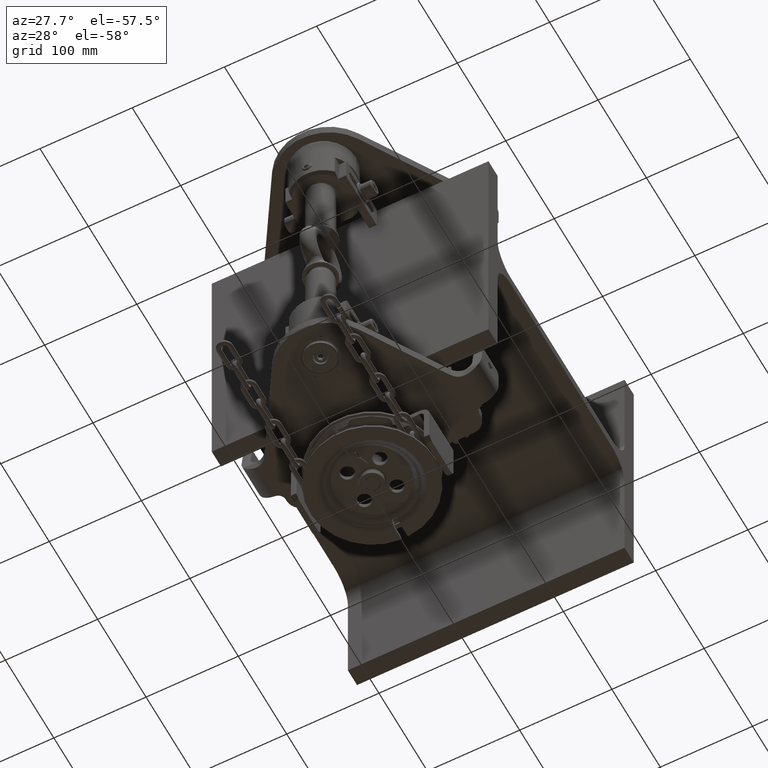
[diagram: clean part render]
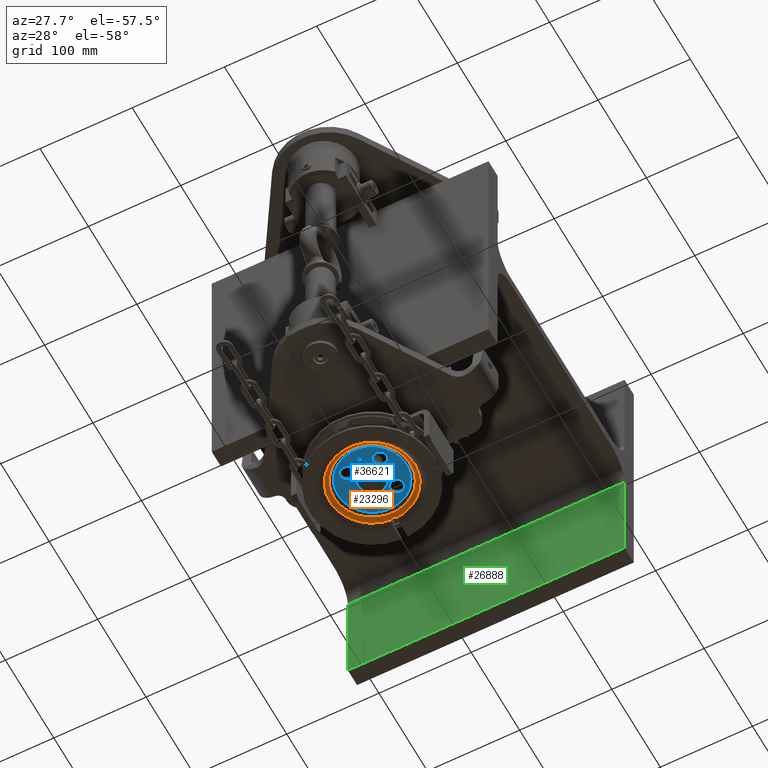
[diagram: same view with three faces highlighted in distinct colors, each labeled with its STEP entity id]
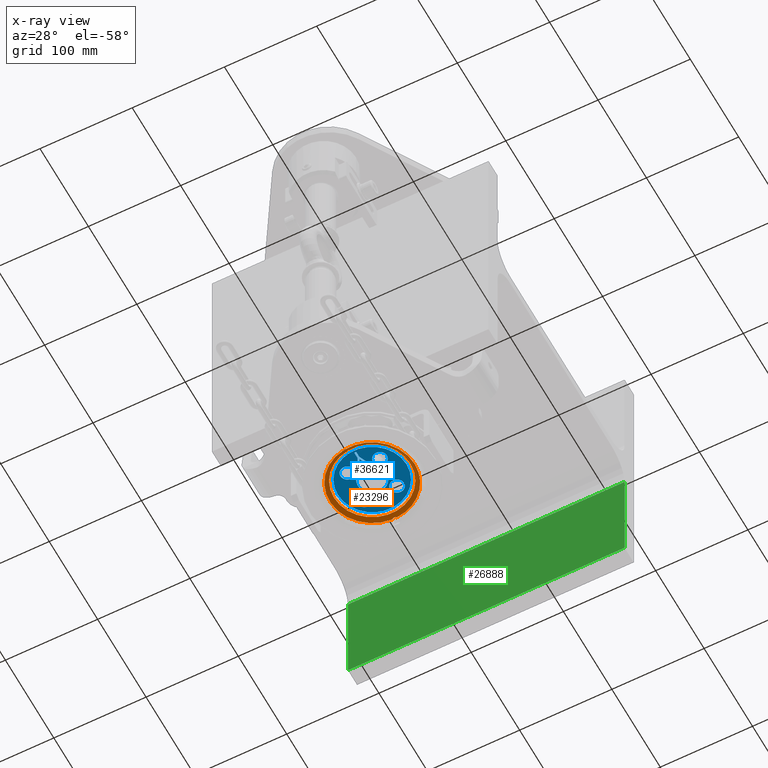
[diagram: x-ray of the same camera — body ghosted, the three highlighted faces saturated]
A machine part, auxiliary view with three faces highlighted in distinct colors.
The next image is the same camera in x-ray (body ghosted, the three faces saturated) — at least one of them is partly hidden behind the body in this view.
Their STEP definitions:

[orange] entity #23296 — the highlighted toroidal blend (fillet) surface has major radius 48.5 mm and minor (blend) radius 8.5 mm.
#99 = AXIS2_PLACEMENT_3D ( 'NONE', #54396, #8509, #29300 ) ;
#3870 = VERTEX_POINT ( 'NONE', #27962 ) ;
#4227 = CARTESIAN_POINT ( 'NONE',  ( -0.9015049907145018500, -59.30965585281169400, -251.2987284569895800 ) ) ;
#4594 = DIRECTION ( 'NONE',  ( -8.598583866909079100E-029, 4.854769171880107100E-015, 1.000000000000000000 ) ) ;
#5669 = EDGE_LOOP ( 'NONE', ( #22270, #6450 ) ) ;
#6450 = ORIENTED_EDGE ( 'NONE', *, *, #35070, .F. ) ;
#7908 = FACE_OUTER_BOUND ( 'NONE', #5669, .T. ) ;
#8219 = CARTESIAN_POINT ( 'NONE',  ( -0.4519893890075326000, -59.39824433313834400, -251.2567023276027700 ) ) ;
#8509 = DIRECTION ( 'NONE',  ( -8.598583866909079100E-029, 4.854769171880107100E-015, 1.000000000000000000 ) ) ;
#8767 = DIRECTION ( 'NONE',  ( 1.000000000000000000, 0.0000000000000000000, 0.0000000000000000000 ) ) ;
#11512 = AXIS2_PLACEMENT_3D ( 'NONE', #50792, #4594, #8767 ) ;
#12237 = CARTESIAN_POINT ( 'NONE',  ( 0.9074859709528075900, -59.30791523393070700, -251.2995403124825800 ) ) ;
#12388 = B_SPLINE_CURVE_WITH_KNOTS ( 'NONE', 3,
 ( #53943, #37833, #41677, #29024, #33222, #37482, #12237, #29376, #12613, #29210, #8219, #4227, #37663, #16486, #42036, #45876, #20929, #20745 ),
 .UNSPECIFIED., .F., .F.,
 ( 4, 2, 2, 2, 2, 2, 2, 2, 4 ),
 ( 9.171273438744803700E-007, 0.0006839626874920374600, 0.001367008247640200900, 0.002050053807788364900, 0.002733099367936528600, 0.003416144928084691900, 0.004099190488232856000, 0.004782236048381019300, 0.005465281608529183400 ),
 .UNSPECIFIED. ) ;
#12613 = CARTESIAN_POINT ( 'NONE',  ( 0.2304750955373564600, -59.41984013718246900, -251.2460445442598000 ) ) ;
#13511 = VERTEX_POINT ( 'NONE', #19656 ) ;
#14629 = EDGE_CURVE ( 'NONE', #13511, #23862, #12388, .T. ) ;
#15647 = DIRECTION ( 'NONE',  ( -8.598583866909079100E-029, 4.854769171880107100E-015, 1.000000000000000000 ) ) ;
#16486 = CARTESIAN_POINT ( 'NONE',  ( -1.536759186382755000, -59.07262552135375700, -251.4045097708354000 ) ) ;
#17106 = FACE_OUTER_BOUND ( 'NONE', #45091, .T. ) ;
#19656 = CARTESIAN_POINT ( 'NONE',  ( 2.448331331080666000, -58.42113448124477100, -251.6434507915105600 ) ) ;
#20745 = CARTESIAN_POINT ( 'NONE',  ( -2.448331331080704200, -58.42113448124477100, -251.6434507915105600 ) ) ;
#20929 = CARTESIAN_POINT ( 'NONE',  ( -2.287226847370896500, -58.57883777868895000, -251.5937808058776900 ) ) ;
#22270 = ORIENTED_EDGE ( 'NONE', *, *, #14629, .F. ) ;
#23296 = ADVANCED_FACE ( 'NONE', ( #7908, #17106 ), #35488, .T. ) ;
#23862 = VERTEX_POINT ( 'NONE', #31596 ) ;
#25150 = ORIENTED_EDGE ( 'NONE', *, *, #29367, .T. ) ;
#27962 = CARTESIAN_POINT ( 'NONE',  ( 41.43242493609501100, -104.4200000000059400, -248.2222222222097800 ) ) ;
#29024 = CARTESIAN_POINT ( 'NONE',  ( 1.741809548091862100, -58.96397086662069100, -251.4500501506236700 ) ) ;
#29207 = CIRCLE ( 'NONE', #39756, 41.43242493609500300 ) ;
#29210 = CARTESIAN_POINT ( 'NONE',  ( -0.2255938912752383200, -59.42015816095722200, -251.2458896693429200 ) ) ;
#29300 = DIRECTION ( 'NONE',  ( 1.000000000000000000, 4.174413987889584400E-043, 8.598583866909079100E-029 ) ) ;
#29367 = EDGE_CURVE ( 'NONE', #3870, #3870, #29207, .T. ) ;
#29376 = CARTESIAN_POINT ( 'NONE',  ( 0.4623877475579067900, -59.39673668699325000, -251.2574309411774000 ) ) ;
#31596 = CARTESIAN_POINT ( 'NONE',  ( -2.448331331080704200, -58.42113448124477100, -251.6434507915105600 ) ) ;
#32956 = DIRECTION ( 'NONE',  ( 1.000000000000000000, 0.0000000000000000000, 0.0000000000000000000 ) ) ;
#33222 = CARTESIAN_POINT ( 'NONE',  ( 1.540971101534421200, -59.07062915890555400, -251.4053618849185900 ) ) ;
#35070 = EDGE_CURVE ( 'NONE', #23862, #13511, #49875, .T. ) ;
#35488 = TOROIDAL_SURFACE ( 'NONE', #99, 48.50000000000026300, 8.500000000000063900 ) ;
#37482 = CARTESIAN_POINT ( 'NONE',  ( 1.123066110408383700, -59.24261621984297900, -251.3300420328047800 ) ) ;
#37663 = CARTESIAN_POINT ( 'NONE',  ( -1.120224046304510300, -59.24351840086755100, -251.3296243822354400 ) ) ;
#37833 = CARTESIAN_POINT ( 'NONE',  ( 2.287287764256186400, -58.57877814786144900, -251.5937995871106500 ) ) ;
#39756 = AXIS2_PLACEMENT_3D ( 'NONE', #53286, #15647, #32956 ) ;
#41677 = CARTESIAN_POINT ( 'NONE',  ( 2.113795968603536100, -58.71848633046027300, -251.5440548781766100 ) ) ;
#42036 = CARTESIAN_POINT ( 'NONE',  ( -1.737905530323594600, -58.96633218853927600, -251.4491138369849400 ) ) ;
#45091 = EDGE_LOOP ( 'NONE', ( #25150 ) ) ;
#45876 = CARTESIAN_POINT ( 'NONE',  ( -2.113058929329494800, -58.71918513079051400, -251.5438189678311300 ) ) ;
#49875 = CIRCLE ( 'NONE', #11512, 46.06397676405962500 ) ;
#50792 = CARTESIAN_POINT ( 'NONE',  ( 7.062578760751415200E-015, -104.4200000000059600, -251.6434507915103000 ) ) ;
#53286 = CARTESIAN_POINT ( 'NONE',  ( 7.062578760751281100E-015, -104.4200000000059400, -248.2222222222097800 ) ) ;
#53943 = CARTESIAN_POINT ( 'NONE',  ( 2.448331331080666000, -58.42113448124477100, -251.6434507915105600 ) ) ;
#54396 = CARTESIAN_POINT ( 'NONE',  ( 7.062578760757020000E-015, -104.4200000000059100, -243.4999999999875800 ) ) ;

[blue] entity #36621 — the highlighted planar face has unit normal (-0, 0, 1).
#478 = DIRECTION ( 'NONE',  ( -8.598583866909079100E-029, 4.854769171880107100E-015, 1.000000000000000000 ) ) ;
#775 = LINE ( 'NONE', #23128, #51902 ) ;
#777 = CARTESIAN_POINT ( 'NONE',  ( 1.000000000000382100, -132.9200000000055600, -245.9999999999874900 ) ) ;
#1137 = DIRECTION ( 'NONE',  ( -8.598583866909079100E-029, 4.854769171880107100E-015, 1.000000000000000000 ) ) ;
#1167 = CARTESIAN_POINT ( 'NONE',  ( -0.9999999999996721500, -132.9200000000055600, -245.9999999999874900 ) ) ;
#1231 = CIRCLE ( 'NONE', #2259, 7.500000000000211400 ) ;
#1544 = DIRECTION ( 'NONE',  ( 1.000000000000000000, -1.470872767424195800E-028, 9.466330862653775600E-030 ) ) ;
#1649 = VECTOR ( 'NONE', #39770, 1000.000000000000000 ) ;
#1827 = VECTOR ( 'NONE', #8948, 1000.000000000000000 ) ;
#2259 = AXIS2_PLACEMENT_3D ( 'NONE', #32135, #6962, #7148 ) ;
#2733 = DIRECTION ( 'NONE',  ( -1.000000000000000000, -5.551115123125772000E-014, 2.600274948304299400E-028 ) ) ;
#3478 = EDGE_CURVE ( 'NONE', #15171, #9363, #42604, .T. ) ;
#3814 = VERTEX_POINT ( 'NONE', #4816 ) ;
#3874 = EDGE_LOOP ( 'NONE', ( #18339 ) ) ;
#3877 = DIRECTION ( 'NONE',  ( -8.598583866909079100E-029, 4.854769171880107100E-015, 1.000000000000000000 ) ) ;
#4442 = DIRECTION ( 'NONE',  ( 3.416070845000250500E-014, 1.000000000000000000, -4.854769171880058200E-015 ) ) ;
#4498 = VERTEX_POINT ( 'NONE', #13011 ) ;
#4816 = CARTESIAN_POINT ( 'NONE',  ( -10.17766952966349300, -122.0976695296697200, -245.9999999999875500 ) ) ;
#5061 = ORIENTED_EDGE ( 'NONE', *, *, #38051, .T. ) ;
#5646 = VECTOR ( 'NONE', #45956, 1000.000000000000100 ) ;
#5816 = VERTEX_POINT ( 'NONE', #31163 ) ;
#5947 = EDGE_CURVE ( 'NONE', #5816, #17621, #32889, .T. ) ;
#6831 = CARTESIAN_POINT ( 'NONE',  ( 3.000000000000206500, -124.4200000000059400, -245.9999999999875500 ) ) ;
#6962 = DIRECTION ( 'NONE',  ( -8.598583866909079100E-029, 4.854769171880107100E-015, 1.000000000000000000 ) ) ;
#7148 = DIRECTION ( 'NONE',  ( 1.000000000000000000, 0.0000000000000000000, 0.0000000000000000000 ) ) ;
#7149 = AXIS2_PLACEMENT_3D ( 'NONE', #22577, #1137, #9882 ) ;
#7306 = EDGE_CURVE ( 'NONE', #53345, #5816, #45139, .T. ) ;
#7769 = CARTESIAN_POINT ( 'NONE',  ( 8.797302236729981400E-015, -130.7950000000059600, -245.9999999999874900 ) ) ;
#7868 = CARTESIAN_POINT ( 'NONE',  ( 17.67766952966405100, -86.74233047034118700, -245.9999999999877200 ) ) ;
#8580 = CARTESIAN_POINT ( 'NONE',  ( 17.67766952966423600, -122.0976695296695200, -245.9999999999875500 ) ) ;
#8736 = EDGE_LOOP ( 'NONE', ( #37399 ) ) ;
#8948 = DIRECTION ( 'NONE',  ( -3.416070845000308600E-014, -1.000000000000000000, 4.854769171880058200E-015 ) ) ;
#9299 = ORIENTED_EDGE ( 'NONE', *, *, #3478, .F. ) ;
#9363 = VERTEX_POINT ( 'NONE', #20551 ) ;
#9882 = DIRECTION ( 'NONE',  ( 1.000000000000000000, 0.0000000000000000000, 0.0000000000000000000 ) ) ;
#9891 = CARTESIAN_POINT ( 'NONE',  ( 7.062578760751199000E-015, -104.4200000000059300, -245.9999999999876400 ) ) ;
#10262 = LINE ( 'NONE', #37526, #41225 ) ;
#10590 = DIRECTION ( 'NONE',  ( -0.4257970363299110100, 0.9048187022009792600, -4.392685941585835200E-015 ) ) ;
#11202 = EDGE_CURVE ( 'NONE', #9363, #53345, #30622, .T. ) ;
#11367 = DIRECTION ( 'NONE',  ( 0.4257970363298924600, 0.9048187022009880300, -4.392685941585875400E-015 ) ) ;
#11848 = FACE_BOUND ( 'NONE', #20720, .T. ) ;
#12300 = AXIS2_PLACEMENT_3D ( 'NONE', #31450, #35298, #1544 ) ;
#12961 = DIRECTION ( 'NONE',  ( 1.000000000000000000, 0.0000000000000000000, 0.0000000000000000000 ) ) ;
#13011 = CARTESIAN_POINT ( 'NONE',  ( 25.17766952966416500, -122.0976695296695200, -245.9999999999875500 ) ) ;
#13123 = ORIENTED_EDGE ( 'NONE', *, *, #16360, .F. ) ;
#13456 = CARTESIAN_POINT ( 'NONE',  ( -3.000000000000022600, -124.4200000000059400, -245.9999999999875500 ) ) ;
#14178 = CIRCLE ( 'NONE', #39799, 15.50000000000051300 ) ;
#14264 = VERTEX_POINT ( 'NONE', #1167 ) ;
#14904 = AXIS2_PLACEMENT_3D ( 'NONE', #37929, #478, #38120 ) ;
#15171 = VERTEX_POINT ( 'NONE', #32468 ) ;
#16288 = VERTEX_POINT ( 'NONE', #47018 ) ;
#16360 = EDGE_CURVE ( 'NONE', #17621, #14264, #10262, .T. ) ;
#16498 = EDGE_CURVE ( 'NONE', #16288, #16288, #14178, .T. ) ;
#17002 = LINE ( 'NONE', #6831, #28910 ) ;
#17055 = CARTESIAN_POINT ( 'NONE',  ( -4.999999999999998200, -124.4200000000058300, -245.9999999999875500 ) ) ;
#17389 = CARTESIAN_POINT ( 'NONE',  ( 1.000000000000382100, -132.9200000000055600, -245.9999999999874900 ) ) ;
#17532 = ORIENTED_EDGE ( 'NONE', *, *, #11202, .F. ) ;
#17621 = VERTEX_POINT ( 'NONE', #51814 ) ;
#18339 = ORIENTED_EDGE ( 'NONE', *, *, #23779, .F. ) ;
#18787 = ORIENTED_EDGE ( 'NONE', *, *, #52573, .F. ) ;
#19304 = EDGE_CURVE ( 'NONE', #29509, #29509, #53086, .T. ) ;
#20215 = CARTESIAN_POINT ( 'NONE',  ( -10.17766952966401400, -86.74233047034138600, -245.9999999999877200 ) ) ;
#20409 = DIRECTION ( 'NONE',  ( 1.000000000000000000, 5.551115123125772000E-014, -2.600274948304299400E-028 ) ) ;
#20551 = CARTESIAN_POINT ( 'NONE',  ( 5.000000000000232700, -124.4200000000058300, -245.9999999999875500 ) ) ;
#20720 = EDGE_LOOP ( 'NONE', ( #29079 ) ) ;
#21715 = PLANE ( 'NONE',  #12300 ) ;
#21954 = DIRECTION ( 'NONE',  ( 0.4257970363298666000, -0.9048187022010001400, 4.392685941585936900E-015 ) ) ;
#22061 = ORIENTED_EDGE ( 'NONE', *, *, #19304, .T. ) ;
#22247 = CIRCLE ( 'NONE', #7149, 37.27502783967935300 ) ;
#22497 = ORIENTED_EDGE ( 'NONE', *, *, #5947, .F. ) ;
#22577 = CARTESIAN_POINT ( 'NONE',  ( 7.062578760751199000E-015, -104.4200000000059300, -245.9999999999876400 ) ) ;
#23088 = FACE_BOUND ( 'NONE', #40856, .T. ) ;
#23128 = CARTESIAN_POINT ( 'NONE',  ( -4.999999999999998200, -124.4200000000058300, -245.9999999999875500 ) ) ;
#23779 = EDGE_CURVE ( 'NONE', #35351, #35351, #22247, .T. ) ;
#24044 = VECTOR ( 'NONE', #21954, 1000.000000000000100 ) ;
#24082 = DIRECTION ( 'NONE',  ( 1.000000000000000000, 0.0000000000000000000, 0.0000000000000000000 ) ) ;
#25565 = EDGE_LOOP ( 'NONE', ( #5061 ) ) ;
#25899 = EDGE_CURVE ( 'NONE', #48045, #15171, #17002, .T. ) ;
#25926 = VERTEX_POINT ( 'NONE', #50286 ) ;
#26756 = CIRCLE ( 'NONE', #14904, 7.500000000000540900 ) ;
#27100 = CARTESIAN_POINT ( 'NONE',  ( -4.999999999999998200, -124.4200000000058300, -245.9999999999875500 ) ) ;
#27313 = LINE ( 'NONE', #27100, #1649 ) ;
#27682 = EDGE_CURVE ( 'NONE', #25926, #48045, #37834, .T. ) ;
#28910 = VECTOR ( 'NONE', #11367, 1000.000000000000000 ) ;
#29079 = ORIENTED_EDGE ( 'NONE', *, *, #16498, .T. ) ;
#29509 = VERTEX_POINT ( 'NONE', #35127 ) ;
#30622 = LINE ( 'NONE', #37018, #5646 ) ;
#30703 = VERTEX_POINT ( 'NONE', #20215 ) ;
#31163 = CARTESIAN_POINT ( 'NONE',  ( 1.000000000000160100, -139.4200000000058400, -245.9999999999874700 ) ) ;
#31450 = CARTESIAN_POINT ( 'NONE',  ( 7.062578760751199000E-015, -104.4200000000059300, -245.9999999999876400 ) ) ;
#31465 = VECTOR ( 'NONE', #20409, 1000.000000000000000 ) ;
#32135 = CARTESIAN_POINT ( 'NONE',  ( -17.67766952966422500, -86.74233047034138600, -245.9999999999877200 ) ) ;
#32468 = CARTESIAN_POINT ( 'NONE',  ( 3.000000000000206500, -124.4200000000059400, -245.9999999999875500 ) ) ;
#32781 = AXIS2_PLACEMENT_3D ( 'NONE', #8580, #46232, #12961 ) ;
#32889 = LINE ( 'NONE', #52594, #43339 ) ;
#35127 = CARTESIAN_POINT ( 'NONE',  ( 25.17766952966365700, -86.74233047034118700, -245.9999999999877200 ) ) ;
#35298 = DIRECTION ( 'NONE',  ( -9.466330862653060900E-030, 4.854769171880107100E-015, 1.000000000000000000 ) ) ;
#35306 = CARTESIAN_POINT ( 'NONE',  ( 37.27502783967936000, -104.4200000000059300, -245.9999999999876400 ) ) ;
#35351 = VERTEX_POINT ( 'NONE', #35306 ) ;
#35492 = AXIS2_PLACEMENT_3D ( 'NONE', #7868, #3877, #24082 ) ;
#35565 = FACE_BOUND ( 'NONE', #50341, .T. ) ;
#36621 = ADVANCED_FACE ( 'NONE', ( #35565, #36902, #45396, #23088, #11848, #44714, #39557 ), #21715, .F. ) ;
#36766 = CARTESIAN_POINT ( 'NONE',  ( 3.000000000000206500, -124.4200000000059400, -245.9999999999875500 ) ) ;
#36902 = FACE_BOUND ( 'NONE', #8736, .T. ) ;
#37018 = CARTESIAN_POINT ( 'NONE',  ( 5.000000000000234500, -124.4200000000058300, -245.9999999999875500 ) ) ;
#37399 = ORIENTED_EDGE ( 'NONE', *, *, #44170, .T. ) ;
#37511 = EDGE_CURVE ( 'NONE', #30703, #30703, #1231, .T. ) ;
#37526 = CARTESIAN_POINT ( 'NONE',  ( -0.9999999999996755900, -132.9200000000055600, -245.9999999999874900 ) ) ;
#37834 = LINE ( 'NONE', #13456, #24044 ) ;
#37929 = CARTESIAN_POINT ( 'NONE',  ( -17.67766952966403300, -122.0976695296697200, -245.9999999999875500 ) ) ;
#38051 = EDGE_CURVE ( 'NONE', #3814, #3814, #26756, .T. ) ;
#38120 = DIRECTION ( 'NONE',  ( 1.000000000000000000, 0.0000000000000000000, 0.0000000000000000000 ) ) ;
#39557 = FACE_BOUND ( 'NONE', #53885, .T. ) ;
#39709 = DIRECTION ( 'NONE',  ( 1.000000000000000000, 0.0000000000000000000, 0.0000000000000000000 ) ) ;
#39770 = DIRECTION ( 'NONE',  ( 1.000000000000000000, -5.551115123125790900E-014, 2.789601565557369600E-028 ) ) ;
#39799 = AXIS2_PLACEMENT_3D ( 'NONE', #9891, #39882, #39709 ) ;
#39882 = DIRECTION ( 'NONE',  ( -8.598583866909079100E-029, 4.854769171880107100E-015, 1.000000000000000000 ) ) ;
#40221 = ORIENTED_EDGE ( 'NONE', *, *, #27682, .F. ) ;
#40856 = EDGE_LOOP ( 'NONE', ( #51052 ) ) ;
#41225 = VECTOR ( 'NONE', #4442, 1000.000000000000000 ) ;
#42604 = LINE ( 'NONE', #36766, #31465 ) ;
#43339 = VECTOR ( 'NONE', #2733, 1000.000000000000000 ) ;
#44170 = EDGE_CURVE ( 'NONE', #4498, #4498, #52384, .T. ) ;
#44714 = FACE_OUTER_BOUND ( 'NONE', #3874, .T. ) ;
#45139 = LINE ( 'NONE', #17389, #1827 ) ;
#45396 = FACE_BOUND ( 'NONE', #25565, .T. ) ;
#45956 = DIRECTION ( 'NONE',  ( -0.4257970363298722600, -0.9048187022009974700, 4.392685941585922000E-015 ) ) ;
#46232 = DIRECTION ( 'NONE',  ( -8.598583866909079100E-029, 4.854769171880107100E-015, 1.000000000000000000 ) ) ;
#47018 = CARTESIAN_POINT ( 'NONE',  ( 15.50000000000052000, -104.4200000000059300, -245.9999999999876400 ) ) ;
#48045 = VERTEX_POINT ( 'NONE', #7769 ) ;
#48729 = EDGE_CURVE ( 'NONE', #14264, #52956, #775, .T. ) ;
#50286 = CARTESIAN_POINT ( 'NONE',  ( -3.000000000000021800, -124.4200000000059400, -245.9999999999875500 ) ) ;
#50341 = EDGE_LOOP ( 'NONE', ( #22061 ) ) ;
#51052 = ORIENTED_EDGE ( 'NONE', *, *, #37511, .T. ) ;
#51693 = ORIENTED_EDGE ( 'NONE', *, *, #7306, .F. ) ;
#51773 = ORIENTED_EDGE ( 'NONE', *, *, #25899, .F. ) ;
#51814 = CARTESIAN_POINT ( 'NONE',  ( -0.9999999999998976400, -139.4200000000059600, -245.9999999999874700 ) ) ;
#51902 = VECTOR ( 'NONE', #10590, 1000.000000000000000 ) ;
#52384 = CIRCLE ( 'NONE', #32781, 7.499999999999930700 ) ;
#52573 = EDGE_CURVE ( 'NONE', #52956, #25926, #27313, .T. ) ;
#52594 = CARTESIAN_POINT ( 'NONE',  ( 1.000000000000160100, -139.4200000000058400, -245.9999999999874700 ) ) ;
#52956 = VERTEX_POINT ( 'NONE', #17055 ) ;
#53086 = CIRCLE ( 'NONE', #35492, 7.499999999999603900 ) ;
#53345 = VERTEX_POINT ( 'NONE', #777 ) ;
#53789 = ORIENTED_EDGE ( 'NONE', *, *, #48729, .F. ) ;
#53885 = EDGE_LOOP ( 'NONE', ( #51693, #17532, #9299, #51773, #40221, #18787, #53789, #13123, #22497 ) ) ;

[green] entity #26888 — the highlighted planar face has unit normal (0, 1, -0).
#793 = ORIENTED_EDGE ( 'NONE', *, *, #45263, .T. ) ;
#820 = CARTESIAN_POINT ( 'NONE',  ( 150.0000000000000000, 131.0000000000009700, -32.49999999999796100 ) ) ;
#2929 = CARTESIAN_POINT ( 'NONE',  ( -150.0000000000000600, 131.0000000000004800, -149.9999999999977800 ) ) ;
#4087 = VERTEX_POINT ( 'NONE', #15324 ) ;
#6264 = DIRECTION ( 'NONE',  ( -1.000000000000000000, 2.645435875969847300E-017, 3.677613769070833000E-016 ) ) ;
#6608 = ORIENTED_EDGE ( 'NONE', *, *, #45289, .T. ) ;
#10748 = EDGE_LOOP ( 'NONE', ( #6608, #22963, #13549, #793 ) ) ;
#10813 = VECTOR ( 'NONE', #27806, 1000.000000000000000 ) ;
#10816 = PLANE ( 'NONE',  #16348 ) ;
#11237 = DIRECTION ( 'NONE',  ( -1.000000000000000000, 2.645435875969847300E-017, 3.677613769070833000E-016 ) ) ;
#12740 = LINE ( 'NONE', #49245, #10813 ) ;
#13549 = ORIENTED_EDGE ( 'NONE', *, *, #52678, .F. ) ;
#15324 = CARTESIAN_POINT ( 'NONE',  ( 149.9999999999999400, 131.0000000000004800, -149.9999999999979000 ) ) ;
#16348 = AXIS2_PLACEMENT_3D ( 'NONE', #52864, #22995, #6264 ) ;
#17976 = LINE ( 'NONE', #40718, #39061 ) ;
#19792 = VERTEX_POINT ( 'NONE', #25650 ) ;
#21266 = VECTOR ( 'NONE', #11237, 1000.000000000000000 ) ;
#22963 = ORIENTED_EDGE ( 'NONE', *, *, #48036, .F. ) ;
#22995 = DIRECTION ( 'NONE',  ( 2.645435875969699400E-017, 1.000000000000000000, -4.020622725628217800E-015 ) ) ;
#25650 = CARTESIAN_POINT ( 'NONE',  ( -150.0000000000000000, 131.0000000000009700, -32.49999999999785400 ) ) ;
#26888 = ADVANCED_FACE ( 'NONE', ( #41865 ), #10816, .F. ) ;
#27806 = DIRECTION ( 'NONE',  ( -3.330669073875467600E-016, -3.905884120774306700E-015, -1.000000000000000000 ) ) ;
#31533 = DIRECTION ( 'NONE',  ( -1.000000000000000000, 2.645435875969847300E-017, 3.677613769070833000E-016 ) ) ;
#32960 = CARTESIAN_POINT ( 'NONE',  ( 149.9999999999999400, 131.0000000000004800, -149.9999999999979000 ) ) ;
#34421 = LINE ( 'NONE', #35747, #35732 ) ;
#35732 = VECTOR ( 'NONE', #31533, 1000.000000000000000 ) ;
#35747 = CARTESIAN_POINT ( 'NONE',  ( 150.0000000000000000, 131.0000000000009700, -32.49999999999796100 ) ) ;
#39061 = VECTOR ( 'NONE', #44526, 1000.000000000000000 ) ;
#39689 = LINE ( 'NONE', #32960, #21266 ) ;
#40718 = CARTESIAN_POINT ( 'NONE',  ( -150.0000000000000000, 131.0000000000009700, -32.49999999999785400 ) ) ;
#41865 = FACE_OUTER_BOUND ( 'NONE', #10748, .T. ) ;
#44526 = DIRECTION ( 'NONE',  ( -3.330669073875467600E-016, -3.905884120774306700E-015, -1.000000000000000000 ) ) ;
#45263 = EDGE_CURVE ( 'NONE', #48344, #19792, #34421, .T. ) ;
#45289 = EDGE_CURVE ( 'NONE', #19792, #49576, #17976, .T. ) ;
#48036 = EDGE_CURVE ( 'NONE', #4087, #49576, #39689, .T. ) ;
#48344 = VERTEX_POINT ( 'NONE', #820 ) ;
#49245 = CARTESIAN_POINT ( 'NONE',  ( 150.0000000000000000, 131.0000000000009700, -32.49999999999796100 ) ) ;
#49576 = VERTEX_POINT ( 'NONE', #2929 ) ;
#52678 = EDGE_CURVE ( 'NONE', #48344, #4087, #12740, .T. ) ;
#52864 = CARTESIAN_POINT ( 'NONE',  ( 150.0000000000000000, 131.0000000000009700, -32.49999999999796100 ) ) ;